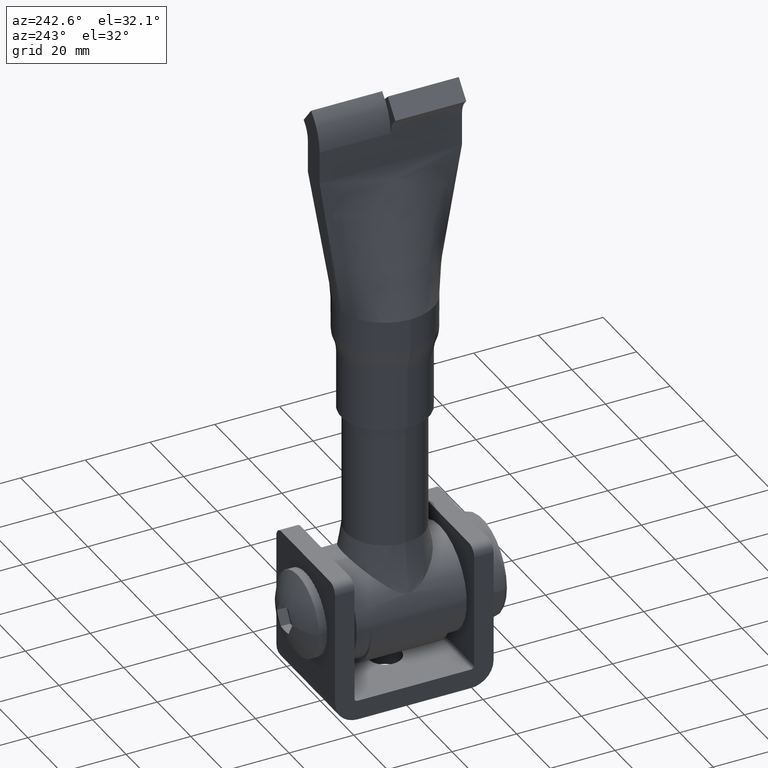
[diagram: clean part render]
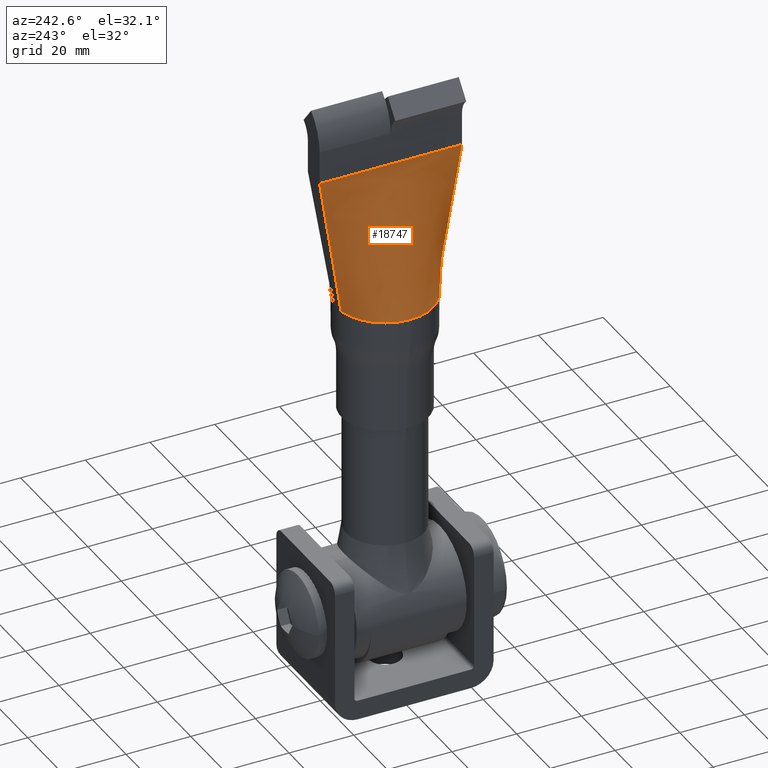
[diagram: same view with one face highlighted and labeled with its STEP entity id]
A machine part, auxiliary view. The second image highlights one B-rep face of the part: STEP entity #18747.
In plain terms, the highlighted face is a freeform B-spline surface patch.
Its self-contained STEP definition (entity closure, byte-faithful):
#11 = CARTESIAN_POINT ( 'NONE',  ( -13.37494078136141700, -7.060307572767653600, 35.56000000000001600 ) ) ;
#99 = CARTESIAN_POINT ( 'NONE',  ( -2.049772585314579000, -14.78445625054876300, 35.56000000000000200 ) ) ;
#187 = CARTESIAN_POINT ( 'NONE',  ( -2.259194244880883500, -14.82922096782267500, 36.00000000000000700 ) ) ;
#191 = DIRECTION ( 'NONE',  ( 0.0000000000000000000, 0.0000000000000000000, 1.000000000000000000 ) ) ;
#270 = CARTESIAN_POINT ( 'NONE',  ( -7.002357202917679900, -13.28225875806416300, 35.56000000000000200 ) ) ;
#354 = CARTESIAN_POINT ( 'NONE',  ( -4.915749513197326300, -14.18818093152356700, 36.00000000000000700 ) ) ;
#435 = CARTESIAN_POINT ( 'NONE',  ( -2.161662758734787600, -14.84473734061864500, 36.00000000000000700 ) ) ;
#494 = EDGE_CURVE ( 'NONE', #7216, #5556, #15949, .T. ) ;
#551 = LINE ( 'NONE', #17941, #7419 ) ;
#787 = ORIENTED_EDGE ( 'NONE', *, *, #21526, .T. ) ;
#968 = EDGE_CURVE ( 'NONE', #7216, #11731, #551, .T. ) ;
#1206 = CARTESIAN_POINT ( 'NONE',  ( -3.499999999999999600, 12.83333333333333200, 80.00000000000001400 ) ) ;
#1284 = CARTESIAN_POINT ( 'NONE',  ( -2.148279386322132100, 14.77025138069150000, 35.56000000000000200 ) ) ;
#1372 = CARTESIAN_POINT ( 'NONE',  ( -3.500000000000000000, 11.91666666666666800, 80.00000000000001400 ) ) ;
#1457 = CARTESIAN_POINT ( 'NONE',  ( -3.460345671636580800, 15.60938652023283500, 80.50315780212315500 ) ) ;
#1611 = CARTESIAN_POINT ( 'NONE',  ( -3.500000000000000000, 7.333333333333332100, 80.00000000000000000 ) ) ;
#1697 = CARTESIAN_POINT ( 'NONE',  ( -3.406795068986808500, -9.162884368691537800, 80.50315780212318400 ) ) ;
#1778 = CARTESIAN_POINT ( 'NONE',  ( -12.86709375288781100, -7.927528723920555200, 35.56000000000000200 ) ) ;
#1857 = CARTESIAN_POINT ( 'NONE',  ( -15.11500000000000600, 1.068358111972251400, 35.56000000000000200 ) ) ;
#1938 = CARTESIAN_POINT ( 'NONE',  ( -14.88492973075841200, 2.133442205681100200, 36.00000000000000000 ) ) ;
#2021 = CARTESIAN_POINT ( 'NONE',  ( -2.148279386322135700, -14.77025138069150000, 35.56000000000000200 ) ) ;
#2344 = CARTESIAN_POINT ( 'NONE',  ( -3.500000000000002200, -22.29333333333333300, 80.00000000000000000 ) ) ;
#3114 = CARTESIAN_POINT ( 'NONE',  ( -2.345292988337245500, 14.74184164097697400, 35.56000000000000200 ) ) ;
#3203 = CARTESIAN_POINT ( 'NONE',  ( -9.789026415445109200, 11.44983878036461200, 35.56000000000000200 ) ) ;
#3289 = CARTESIAN_POINT ( 'NONE',  ( -3.476063519226390700, 17.45643798030942800, 80.50315780212315500 ) ) ;
#3425 = FACE_OUTER_BOUND ( 'NONE', #14707, .T. ) ;
#3451 = CARTESIAN_POINT ( 'NONE',  ( -4.929907008329296400, 14.14672940750546500, 35.55999999999999500 ) ) ;
#3534 = CARTESIAN_POINT ( 'NONE',  ( -13.27716909045684800, -7.053934890529030000, 36.00000000000002100 ) ) ;
#3549 = CARTESIAN_POINT ( 'NONE',  ( 0.0000000000000000000, 0.0000000000000000000, 36.00000000000000700 ) ) ;
#3612 = CARTESIAN_POINT ( 'NONE',  ( -3.413891684207536900, -10.08193523136285400, 80.50315780212318400 ) ) ;
#3701 = CARTESIAN_POINT ( 'NONE',  ( -11.65055822899980200, -9.497419981439090700, 36.00000000000000700 ) ) ;
#3780 = CARTESIAN_POINT ( 'NONE',  ( -3.499999999999999600, 4.583333333333331300, 79.99999999999998600 ) ) ;
#3866 = CARTESIAN_POINT ( 'NONE',  ( -3.500000000000000000, 0.9166666666666635200, 79.99999999999998600 ) ) ;
#3946 = CARTESIAN_POINT ( 'NONE',  ( -5.614122450433047400, -13.90397706744652600, 35.56000000000000200 ) ) ;
#4280 = CARTESIAN_POINT ( 'NONE',  ( -7.664779633474699600, -12.92056255036640700, 36.00000000000000700 ) ) ;
#4653 = LINE ( 'NONE', #12990, #20868 ) ;
#5039 = CARTESIAN_POINT ( 'NONE',  ( -3.499999999999998200, 20.16666666666666400, 80.00000000000000000 ) ) ;
#5124 = CARTESIAN_POINT ( 'NONE',  ( -9.726758827173377100, 11.45446083864483100, 36.00000000000000700 ) ) ;
#5208 = CARTESIAN_POINT ( 'NONE',  ( -11.73206381128979500, 9.500727514586822400, 35.56000000000000200 ) ) ;
#5288 = CARTESIAN_POINT ( 'NONE',  ( -3.515304427836692700, 22.37851104216509800, 80.50315780212317000 ) ) ;
#5371 = CARTESIAN_POINT ( 'NONE',  ( -3.499999999999998200, 18.33333333333332900, 79.99999999999998600 ) ) ;
#5444 = CARTESIAN_POINT ( 'NONE',  ( -3.500000000000000000, -0.9166666666666697400, 79.99999999999998600 ) ) ;
#5525 = CARTESIAN_POINT ( 'NONE',  ( -3.500000000000001300, -10.08333333333333600, 80.00000000000001400 ) ) ;
#5556 = VERTEX_POINT ( 'NONE', #9098 ) ;
#5606 = CARTESIAN_POINT ( 'NONE',  ( -3.500000000000000400, -4.583333333333335700, 79.99999999999998600 ) ) ;
#5683 = CARTESIAN_POINT ( 'NONE',  ( -14.11014228758121400, 5.190867087550769200, 36.00000000000001400 ) ) ;
#5768 = CARTESIAN_POINT ( 'NONE',  ( -13.27716909045684100, 7.053934890529031800, 36.00000000000001400 ) ) ;
#5942 = CARTESIAN_POINT ( 'NONE',  ( -3.506103103797870700, -21.15613804961288800, 80.50315780212318400 ) ) ;
#6023 = CARTESIAN_POINT ( 'NONE',  ( -2.356725731026978900, -14.81370459502670500, 36.00000000000000700 ) ) ;
#6106 = CARTESIAN_POINT ( 'NONE',  ( -3.436598154235527100, -12.84291545996842200, 80.50315780212318400 ) ) ;
#6511 = B_SPLINE_SURFACE_WITH_KNOTS ( 'NONE', 3, 1, ( 
 ( #22597, #10811, #16759, #20744 ),
 ( #1284, #18704, #22521, #5288 ),
 ( #7201, #20661, #18456, #9057 ),
 ( #3114, #24507, #14933, #16512 ),
 ( #12658, #20407, #14683, #18619 ),
 ( #10983, #7124, #5039, #12913 ),
 ( #3451, #20578, #5371, #6954 ),
 ( #8887, #22352, #14776, #3289 ),
 ( #8973, #24181, #16842, #1457 ),
 ( #12992, #12830, #18788, #7286 ),
 ( #22270, #22433, #1206, #14597 ),
 ( #3203, #5124, #1372, #16599 ),
 ( #18538, #7038, #20491, #10899 ),
 ( #5208, #13233, #22764, #20827 ),
 ( #17008, #24583, #1611, #13407 ),
 ( #24828, #5768, #13322, #13074 ),
 ( #15258, #5683, #3780, #15005 ),
 ( #17168, #11473, #11306, #19118 ),
 ( #24746, #1938, #22678, #15336 ),
 ( #1857, #9220, #3866, #20982 ),
 ( #7367, #7453, #5444, #7706 ),
 ( #7624, #11139, #18957, #24661 ),
 ( #9463, #21064, #19200, #9545 ),
 ( #18871, #22927, #5606, #23015 ),
 ( #11, #3534, #17247, #16923 ),
 ( #1778, #9295, #11224, #9381 ),
 ( #11387, #3701, #13150, #1697 ),
 ( #15172, #15091, #5525, #3612 ),
 ( #20904, #22843, #17085, #19035 ),
 ( #7535, #9966, #11719, #6106 ),
 ( #13571, #4280, #23421, #15582 ),
 ( #270, #7953, #19537, #23262 ),
 ( #3946, #13657, #13824, #9625 ),
 ( #8044, #354, #21141, #15746 ),
 ( #21399, #19282, #19363, #17337 ),
 ( #15660, #9797, #17420, #5942 ),
 ( #9882, #6023, #7875, #23348 ),
 ( #11887, #187, #11559, #21488 ),
 ( #2021, #435, #2344, #15422 ),
 ( #99, #7787, #23180, #17506 ) ),
 .UNSPECIFIED., .F., .F., .F.,
 ( 4, 3, 2, 2, 2, 2, 2, 2, 2, 2, 2, 2, 2, 2, 2, 2, 2, 3, 4 ),
 ( 2, 1, 1, 2 ),
 ( -0.01000000000000000000, 0.0000000000000000000, 0.06250000000000000000, 0.1250000000000000000, 0.1875000000000000000, 0.2500000000000000000, 0.3125000000000000000, 0.3750000000000000000, 0.4375000000000000000, 0.5000000000000000000, 0.5625000000000000000, 0.6250000000000000000, 0.6875000000000000000, 0.7500000000000000000, 0.8125000000000000000, 0.8750000000000000000, 0.9375000000000000000, 1.000000000000000000, 1.010000000000000000 ),
 ( -0.01000000000000000000, 0.0000000000000000000, 1.000000000000000000, 1.011435404593708400 ),
 .UNSPECIFIED. ) ;
#6954 = CARTESIAN_POINT ( 'NONE',  ( -3.483810331513241400, 18.38073482815060800, 80.50315780212315500 ) ) ;
#7038 = CARTESIAN_POINT ( 'NONE',  ( -11.02997544484259500, 10.20559415576636800, 36.00000000000001400 ) ) ;
#7123 = DIRECTION ( 'NONE',  ( -0.02563530597302262500, -0.1611362089732851800, 0.9865991857108880000 ) ) ;
#7124 = CARTESIAN_POINT ( 'NONE',  ( -3.602349531181202400, 14.57711045706065900, 36.00000000000001400 ) ) ;
#7201 = CARTESIAN_POINT ( 'NONE',  ( -2.246786187329688800, 14.75604651083423700, 35.56000000000000200 ) ) ;
#7216 = VERTEX_POINT ( 'NONE', #22683 ) ;
#7286 = CARTESIAN_POINT ( 'NONE',  ( -3.452374059847579200, 14.68663407369929700, 80.50315780212317000 ) ) ;
#7367 = CARTESIAN_POINT ( 'NONE',  ( -15.11500000000000600, -1.068358111972246100, 35.56000000000000900 ) ) ;
#7380 = DIRECTION ( 'NONE',  ( 0.0000000000000000000, 0.0000000000000000000, 1.000000000000000000 ) ) ;
#7410 = DIRECTION ( 'NONE',  ( 1.084202172485504600E-016, 1.000000000000000000, -0.0000000000000000000 ) ) ;
#7419 = VECTOR ( 'NONE', #14419, 1000.000000000000000 ) ;
#7453 = CARTESIAN_POINT ( 'NONE',  ( -15.00000000000000500, -1.066856216474171100, 36.00000000000001400 ) ) ;
#7535 = CARTESIAN_POINT ( 'NONE',  ( -9.099789994081319800, -11.98701890500415400, 35.56000000000000200 ) ) ;
#7624 = CARTESIAN_POINT ( 'NONE',  ( -14.99877902806599500, -2.136443294404574800, 35.56000000000000200 ) ) ;
#7706 = CARTESIAN_POINT ( 'NONE',  ( -3.368492847172353400, -0.9149491883988739600, 80.50315780212315500 ) ) ;
#7787 = CARTESIAN_POINT ( 'NONE',  ( -2.064131272588691800, -14.86025371341461500, 36.00000000000000700 ) ) ;
#7875 = CARTESIAN_POINT ( 'NONE',  ( -3.500000000000002200, -22.00000000000000000, 80.00000000000000000 ) ) ;
#7894 = ORIENTED_EDGE ( 'NONE', *, *, #494, .T. ) ;
#7953 = CARTESIAN_POINT ( 'NONE',  ( -6.967680398928395700, -13.30504167465098700, 36.00000000000000700 ) ) ;
#8044 = CARTESIAN_POINT ( 'NONE',  ( -4.929907008329300000, -14.14672940750546800, 35.56000000000000200 ) ) ;
#8277 = CARTESIAN_POINT ( 'NONE',  ( -3.500000000000002200, -22.00000000000000000, 80.00000000000000000 ) ) ;
#8349 = ORIENTED_EDGE ( 'NONE', *, *, #22257, .T. ) ;
#8887 = CARTESIAN_POINT ( 'NONE',  ( -5.614122450433044700, 13.90397706744653000, 35.56000000000000200 ) ) ;
#8973 = CARTESIAN_POINT ( 'NONE',  ( -7.002357202917673700, 13.28225875806416300, 35.56000000000000900 ) ) ;
#9057 = CARTESIAN_POINT ( 'NONE',  ( -3.514189115831986200, 22.23034461882543800, 80.50315780212317000 ) ) ;
#9098 = CARTESIAN_POINT ( 'NONE',  ( -15.00000000000000400, -5.359275917384242700E-016, 36.00000000000000700 ) ) ;
#9220 = CARTESIAN_POINT ( 'NONE',  ( -15.00000000000000500, 1.066856216474176200, 36.00000000000000700 ) ) ;
#9295 = CARTESIAN_POINT ( 'NONE',  ( -12.77435025038397100, -7.921645601241473300, 36.00000000000000700 ) ) ;
#9381 = CARTESIAN_POINT ( 'NONE',  ( -3.393944052543099100, -7.326605744522363600, 80.50315780212317000 ) ) ;
#9463 = CARTESIAN_POINT ( 'NONE',  ( -14.54924469928876200, -4.200948314832969800, 35.55999999999999500 ) ) ;
#9545 = CARTESIAN_POINT ( 'NONE',  ( -3.374898432087867200, -3.660617432197585100, 80.50315780212315500 ) ) ;
#9625 = CARTESIAN_POINT ( 'NONE',  ( -3.476063519226394200, -17.45643798030943100, 80.50315780212318400 ) ) ;
#9797 = CARTESIAN_POINT ( 'NONE',  ( -2.966297519440077600, -14.71672726505189600, 36.00000000000001400 ) ) ;
#9882 = CARTESIAN_POINT ( 'NONE',  ( -2.345292988337249100, -14.74184164097697400, 35.56000000000000200 ) ) ;
#9966 = CARTESIAN_POINT ( 'NONE',  ( -9.044346528793385100, -11.99539825577969100, 36.00000000000000700 ) ) ;
#10035 = CARTESIAN_POINT ( 'NONE',  ( -2.356732032253958700, -14.81374406239271800, 36.00000000000000700 ) ) ;
#10811 = CARTESIAN_POINT ( 'NONE',  ( -2.064131272588688700, 14.86025371341461500, 36.00000000000000700 ) ) ;
#10899 = CARTESIAN_POINT ( 'NONE',  ( -3.413891684207535500, 10.08193523136285000, 80.50315780212318400 ) ) ;
#10983 = CARTESIAN_POINT ( 'NONE',  ( -3.603373026493014400, 14.52121489496460100, 35.56000000000000900 ) ) ;
#11139 = CARTESIAN_POINT ( 'NONE',  ( -14.88492973075841000, -2.133442205681097100, 36.00000000000000700 ) ) ;
#11224 = CARTESIAN_POINT ( 'NONE',  ( -3.500000000000000400, -7.333333333333335700, 80.00000000000000000 ) ) ;
#11306 = CARTESIAN_POINT ( 'NONE',  ( -3.499999999999999600, 3.666666666666664300, 79.99999999999998600 ) ) ;
#11387 = CARTESIAN_POINT ( 'NONE',  ( -11.73206381128980000, -9.500727514586817100, 35.56000000000000200 ) ) ;
#11473 = CARTESIAN_POINT ( 'NONE',  ( -14.43984623691956200, 4.195658397524395500, 36.00000000000000700 ) ) ;
#11559 = CARTESIAN_POINT ( 'NONE',  ( -3.500000000000002200, -22.14666666666666500, 80.00000000000000000 ) ) ;
#11567 = LINE ( 'NONE', #20788, #14583 ) ;
#11719 = CARTESIAN_POINT ( 'NONE',  ( -3.500000000000002200, -12.83333333333333600, 80.00000000000001400 ) ) ;
#11731 = VERTEX_POINT ( 'NONE', #18233 ) ;
#11887 = CARTESIAN_POINT ( 'NONE',  ( -2.246786187329692400, -14.75604651083423700, 35.56000000000000200 ) ) ;
#12220 = DIRECTION ( 'NONE',  ( 1.000000000000000000, 0.0000000000000000000, 0.0000000000000000000 ) ) ;
#12425 = ORIENTED_EDGE ( 'NONE', *, *, #16909, .T. ) ;
#12658 = CARTESIAN_POINT ( 'NONE',  ( -2.960960494634473400, 14.65306120436907700, 35.56000000000000200 ) ) ;
#12830 = CARTESIAN_POINT ( 'NONE',  ( -7.664779633474699600, 12.92056255036640500, 36.00000000000000700 ) ) ;
#12913 = CARTESIAN_POINT ( 'NONE',  ( -3.498829591700964900, 20.23058550342278000, 80.50315780212317000 ) ) ;
#12990 = CARTESIAN_POINT ( 'NONE',  ( -2.928362865513490600, -18.40685229751335300, 58.00000000000000000 ) ) ;
#12992 = CARTESIAN_POINT ( 'NONE',  ( -7.706427429809446400, 12.90310150920340200, 35.56000000000000200 ) ) ;
#13074 = CARTESIAN_POINT ( 'NONE',  ( -3.388194115669526300, 6.409379246692085800, 80.50315780212317000 ) ) ;
#13150 = CARTESIAN_POINT ( 'NONE',  ( -3.500000000000000900, -9.166666666666669600, 80.00000000000001400 ) ) ;
#13233 = CARTESIAN_POINT ( 'NONE',  ( -11.65055822899979700, 9.497419981439096000, 36.00000000000000700 ) ) ;
#13322 = CARTESIAN_POINT ( 'NONE',  ( -3.500000000000000000, 6.416666666666666100, 80.00000000000000000 ) ) ;
#13407 = CARTESIAN_POINT ( 'NONE',  ( -3.393944052543098600, 7.326605744522360000, 80.50315780212317000 ) ) ;
#13571 = CARTESIAN_POINT ( 'NONE',  ( -7.706427429809446400, -12.90310150920340400, 35.56000000000000200 ) ) ;
#13657 = CARTESIAN_POINT ( 'NONE',  ( -5.593190544983214900, -13.93875617238929900, 36.00000000000000700 ) ) ;
#13824 = CARTESIAN_POINT ( 'NONE',  ( -3.500000000000002200, -17.41666666666666800, 80.00000000000001400 ) ) ;
#14419 = DIRECTION ( 'NONE',  ( -0.02563530597302258700, 0.1611362089732851800, 0.9865991857108880000 ) ) ;
#14583 = VECTOR ( 'NONE', #7410, 1000.000000000000000 ) ;
#14597 = CARTESIAN_POINT ( 'NONE',  ( -3.436598154235524400, 12.84291545996841900, 80.50315780212318400 ) ) ;
#14683 = CARTESIAN_POINT ( 'NONE',  ( -3.499999999999997800, 21.08333333333333200, 80.00000000000000000 ) ) ;
#14707 = EDGE_LOOP ( 'NONE', ( #7894, #787, #8349, #12425, #22132 ) ) ;
#14776 = CARTESIAN_POINT ( 'NONE',  ( -3.499999999999998700, 17.41666666666666400, 79.99999999999998600 ) ) ;
#14790 = DIRECTION ( 'NONE',  ( 1.000000000000000000, 0.0000000000000000000, 0.0000000000000000000 ) ) ;
#14933 = CARTESIAN_POINT ( 'NONE',  ( -3.499999999999997300, 22.00000000000000000, 80.00000000000000000 ) ) ;
#15005 = CARTESIAN_POINT ( 'NONE',  ( -3.378668730144693800, 4.576385939049521000, 80.50315780212315500 ) ) ;
#15091 = CARTESIAN_POINT ( 'NONE',  ( -11.02997544484259500, -10.20559415576636800, 36.00000000000000700 ) ) ;
#15172 = CARTESIAN_POINT ( 'NONE',  ( -11.10527519929102200, -10.20681676399070000, 35.56000000000000200 ) ) ;
#15258 = CARTESIAN_POINT ( 'NONE',  ( -14.21624371045702500, 5.196942425092943900, 35.56000000000000900 ) ) ;
#15336 = CARTESIAN_POINT ( 'NONE',  ( -3.369808722257837900, 1.829901466955872000, 80.50315780212315500 ) ) ;
#15422 = CARTESIAN_POINT ( 'NONE',  ( -3.515304427836697600, -22.37851104216509800, 80.50315780212317000 ) ) ;
#15582 = CARTESIAN_POINT ( 'NONE',  ( -3.452374059847582300, -14.68663407369930100, 80.50315780212318400 ) ) ;
#15660 = CARTESIAN_POINT ( 'NONE',  ( -2.960960494634478300, -14.65306120436908100, 35.56000000000000900 ) ) ;
#15746 = CARTESIAN_POINT ( 'NONE',  ( -3.483810331513245400, -18.38073482815061200, 80.50315780212318400 ) ) ;
#15750 = CARTESIAN_POINT ( 'NONE',  ( 0.0000000000000000000, 0.0000000000000000000, 36.00000000000000700 ) ) ;
#15949 = CIRCLE ( 'NONE', #23663, 15.00000000000000000 ) ;
#16452 = VERTEX_POINT ( 'NONE', #10035 ) ;
#16512 = CARTESIAN_POINT ( 'NONE',  ( -3.513073803827280200, 22.08217819548577400, 80.50315780212317000 ) ) ;
#16599 = CARTESIAN_POINT ( 'NONE',  ( -3.428794493503827500, 11.92195217731566700, 80.50315780212318400 ) ) ;
#16759 = CARTESIAN_POINT ( 'NONE',  ( -3.499999999999997300, 22.43999999999999800, 80.00000000000000000 ) ) ;
#16842 = CARTESIAN_POINT ( 'NONE',  ( -3.499999999999998700, 15.58333333333333000, 79.99999999999998600 ) ) ;
#16909 = EDGE_CURVE ( 'NONE', #17659, #11731, #11567, .T. ) ;
#16923 = CARTESIAN_POINT ( 'NONE',  ( -3.388194115669526800, -6.409379246692089400, 80.50315780212315500 ) ) ;
#17008 = CARTESIAN_POINT ( 'NONE',  ( -12.86709375288781000, 7.927528723920562300, 35.56000000000000200 ) ) ;
#17085 = CARTESIAN_POINT ( 'NONE',  ( -3.500000000000001800, -11.91666666666667000, 80.00000000000001400 ) ) ;
#17168 = CARTESIAN_POINT ( 'NONE',  ( -14.54924469928875800, 4.200948314832973400, 35.56000000000000200 ) ) ;
#17247 = CARTESIAN_POINT ( 'NONE',  ( -3.500000000000000400, -6.416666666666669600, 79.99999999999998600 ) ) ;
#17337 = CARTESIAN_POINT ( 'NONE',  ( -3.498829591700968900, -20.23058550342278400, 80.50315780212318400 ) ) ;
#17420 = CARTESIAN_POINT ( 'NONE',  ( -3.500000000000002200, -21.08333333333333200, 80.00000000000001400 ) ) ;
#17506 = CARTESIAN_POINT ( 'NONE',  ( -3.516419739841403700, -22.52667746550476100, 80.50315780212317000 ) ) ;
#17605 = AXIS2_PLACEMENT_3D ( 'NONE', #15750, #191, #12220 ) ;
#17659 = VERTEX_POINT ( 'NONE', #8277 ) ;
#17941 = CARTESIAN_POINT ( 'NONE',  ( -2.928362865513486600, 18.40685229751335300, 58.00000000000000000 ) ) ;
#18057 = CIRCLE ( 'NONE', #17605, 15.00000000000000000 ) ;
#18233 = CARTESIAN_POINT ( 'NONE',  ( -3.499999999999997300, 22.00000000000000000, 80.00000000000000000 ) ) ;
#18456 = CARTESIAN_POINT ( 'NONE',  ( -3.499999999999997300, 22.14666666666666500, 80.00000000000000000 ) ) ;
#18538 = CARTESIAN_POINT ( 'NONE',  ( -11.10527519929102200, 10.20681676399070000, 35.56000000000000900 ) ) ;
#18619 = CARTESIAN_POINT ( 'NONE',  ( -3.506103103797866700, 21.15613804961288800, 80.50315780212317000 ) ) ;
#18704 = CARTESIAN_POINT ( 'NONE',  ( -2.161662758734784100, 14.84473734061864500, 36.00000000000000700 ) ) ;
#18747 = ADVANCED_FACE ( 'NONE', ( #3425 ), #6511, .T. ) ;
#18788 = CARTESIAN_POINT ( 'NONE',  ( -3.499999999999999100, 14.66666666666666400, 80.00000000000000000 ) ) ;
#18871 = CARTESIAN_POINT ( 'NONE',  ( -14.21624371045702900, -5.196942425092939500, 35.56000000000001600 ) ) ;
#18957 = CARTESIAN_POINT ( 'NONE',  ( -3.500000000000000000, -1.833333333333336100, 79.99999999999998600 ) ) ;
#19035 = CARTESIAN_POINT ( 'NONE',  ( -3.428794493503829300, -11.92195217731566900, 80.50315780212318400 ) ) ;
#19118 = CARTESIAN_POINT ( 'NONE',  ( -3.374898432087866300, 3.660617432197580200, 80.50315780212315500 ) ) ;
#19200 = CARTESIAN_POINT ( 'NONE',  ( -3.500000000000000400, -3.666666666666669200, 79.99999999999998600 ) ) ;
#19282 = CARTESIAN_POINT ( 'NONE',  ( -3.602349531181204600, -14.57711045706065900, 36.00000000000001400 ) ) ;
#19363 = CARTESIAN_POINT ( 'NONE',  ( -3.500000000000002200, -20.16666666666666400, 80.00000000000001400 ) ) ;
#19537 = CARTESIAN_POINT ( 'NONE',  ( -3.500000000000002700, -15.58333333333333400, 80.00000000000001400 ) ) ;
#20407 = CARTESIAN_POINT ( 'NONE',  ( -2.966297519440072700, 14.71672726505189200, 36.00000000000000700 ) ) ;
#20491 = CARTESIAN_POINT ( 'NONE',  ( -3.500000000000000000, 10.08333333333333200, 80.00000000000001400 ) ) ;
#20578 = CARTESIAN_POINT ( 'NONE',  ( -4.915749513197322800, 14.18818093152356300, 36.00000000000000000 ) ) ;
#20661 = CARTESIAN_POINT ( 'NONE',  ( -2.259194244880879900, 14.82922096782267500, 36.00000000000000700 ) ) ;
#20744 = CARTESIAN_POINT ( 'NONE',  ( -3.516419739841398800, 22.52667746550476100, 80.50315780212317000 ) ) ;
#20788 = CARTESIAN_POINT ( 'NONE',  ( -3.499999999999997300, 22.00000000000000000, 80.00000000000000000 ) ) ;
#20827 = CARTESIAN_POINT ( 'NONE',  ( -3.406795068986807600, 9.162884368691534200, 80.50315780212318400 ) ) ;
#20868 = VECTOR ( 'NONE', #7123, 1000.000000000000000 ) ;
#20904 = CARTESIAN_POINT ( 'NONE',  ( -9.789026415445114500, -11.44983878036461000, 35.56000000000000200 ) ) ;
#20982 = CARTESIAN_POINT ( 'NONE',  ( -3.368492847172353400, 0.9149491883988676300, 80.50315780212315500 ) ) ;
#21064 = CARTESIAN_POINT ( 'NONE',  ( -14.43984623691956600, -4.195658397524392800, 36.00000000000000000 ) ) ;
#21141 = CARTESIAN_POINT ( 'NONE',  ( -3.500000000000002200, -18.33333333333333200, 80.00000000000001400 ) ) ;
#21399 = CARTESIAN_POINT ( 'NONE',  ( -3.603373026493016600, -14.52121489496459900, 35.56000000000000900 ) ) ;
#21488 = CARTESIAN_POINT ( 'NONE',  ( -3.514189115831991100, -22.23034461882543800, 80.50315780212317000 ) ) ;
#21526 = EDGE_CURVE ( 'NONE', #5556, #16452, #18057, .T. ) ;
#22132 = ORIENTED_EDGE ( 'NONE', *, *, #968, .F. ) ;
#22257 = EDGE_CURVE ( 'NONE', #16452, #17659, #4653, .T. ) ;
#22270 = CARTESIAN_POINT ( 'NONE',  ( -9.099789994081319800, 11.98701890500415200, 35.56000000000000900 ) ) ;
#22352 = CARTESIAN_POINT ( 'NONE',  ( -5.593190544983213100, 13.93875617238930300, 36.00000000000000700 ) ) ;
#22433 = CARTESIAN_POINT ( 'NONE',  ( -9.044346528793385100, 11.99539825577968900, 36.00000000000001400 ) ) ;
#22521 = CARTESIAN_POINT ( 'NONE',  ( -3.499999999999997300, 22.29333333333333300, 80.00000000000000000 ) ) ;
#22597 = CARTESIAN_POINT ( 'NONE',  ( -2.049772585314575400, 14.78445625054876300, 35.56000000000000200 ) ) ;
#22678 = CARTESIAN_POINT ( 'NONE',  ( -3.500000000000000000, 1.833333333333330400, 79.99999999999998600 ) ) ;
#22683 = CARTESIAN_POINT ( 'NONE',  ( -2.356730390204583100, 14.81373377979307700, 36.00000000000000700 ) ) ;
#22764 = CARTESIAN_POINT ( 'NONE',  ( -3.500000000000000000, 9.166666666666666100, 80.00000000000001400 ) ) ;
#22843 = CARTESIAN_POINT ( 'NONE',  ( -9.726758827173382500, -11.45446083864482900, 36.00000000000000700 ) ) ;
#22927 = CARTESIAN_POINT ( 'NONE',  ( -14.11014228758121700, -5.190867087550765600, 36.00000000000002100 ) ) ;
#23015 = CARTESIAN_POINT ( 'NONE',  ( -3.378668730144694700, -4.576385939049525400, 80.50315780212315500 ) ) ;
#23180 = CARTESIAN_POINT ( 'NONE',  ( -3.500000000000002200, -22.43999999999999800, 80.00000000000000000 ) ) ;
#23262 = CARTESIAN_POINT ( 'NONE',  ( -3.460345671636584400, -15.60938652023283900, 80.50315780212318400 ) ) ;
#23348 = CARTESIAN_POINT ( 'NONE',  ( -3.513073803827285100, -22.08217819548577400, 80.50315780212317000 ) ) ;
#23421 = CARTESIAN_POINT ( 'NONE',  ( -3.500000000000002200, -14.66666666666666800, 80.00000000000001400 ) ) ;
#23663 = AXIS2_PLACEMENT_3D ( 'NONE', #3549, #7380, #14790 ) ;
#24181 = CARTESIAN_POINT ( 'NONE',  ( -6.967680398928389500, 13.30504167465098700, 36.00000000000001400 ) ) ;
#24507 = CARTESIAN_POINT ( 'NONE',  ( -2.356725731026975400, 14.81370459502670500, 36.00000000000000700 ) ) ;
#24583 = CARTESIAN_POINT ( 'NONE',  ( -12.77435025038397000, 7.921645601241479500, 36.00000000000000700 ) ) ;
#24661 = CARTESIAN_POINT ( 'NONE',  ( -3.369808722257837900, -1.829901466955878000, 80.50315780212315500 ) ) ;
#24746 = CARTESIAN_POINT ( 'NONE',  ( -14.99877902806599600, 2.136443294404577900, 35.55999999999999500 ) ) ;
#24828 = CARTESIAN_POINT ( 'NONE',  ( -13.37494078136140800, 7.060307572767655400, 35.56000000000000900 ) ) ;